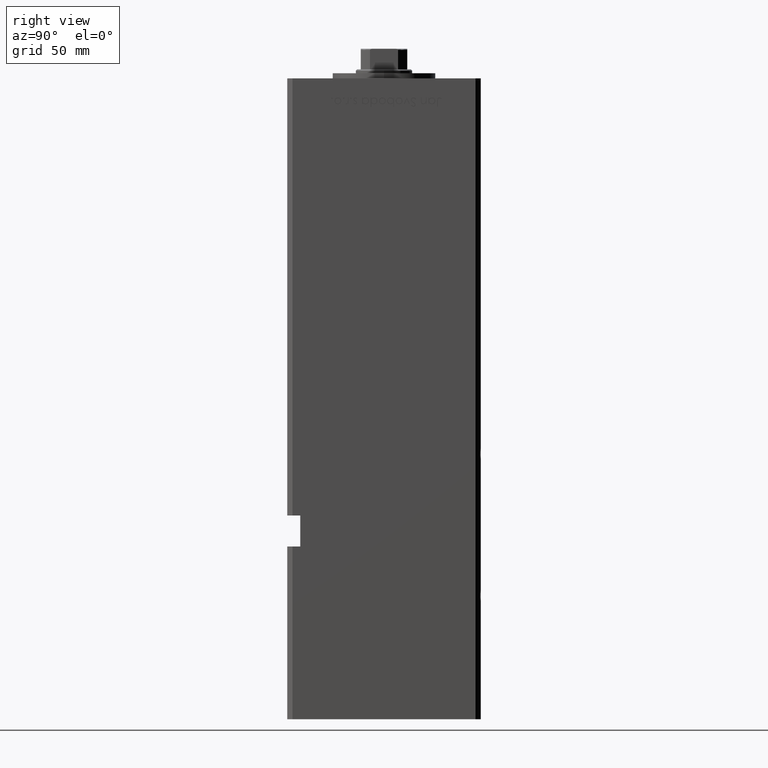
[diagram: clean part render]
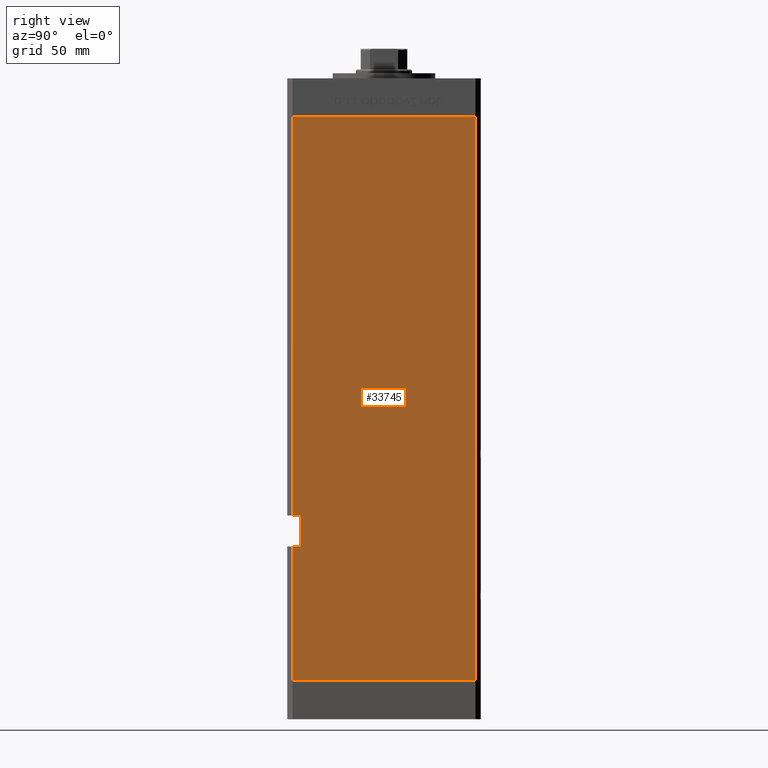
[diagram: same view with one face highlighted and labeled with its STEP entity id]
A machine part, right view. The second image highlights one B-rep face of the part: STEP entity #33745.
In plain terms, the highlighted planar face has unit normal (1, -0, 0).
Its self-contained STEP definition (entity closure, byte-faithful):
#937 = LINE ( 'NONE', #33445, #21138 ) ;
#1130 = LINE ( 'NONE', #50849, #46909 ) ;
#1891 = PLANE ( 'NONE',  #23562 ) ;
#2010 = VERTEX_POINT ( 'NONE', #52369 ) ;
#2672 = VERTEX_POINT ( 'NONE', #24986 ) ;
#4115 = VERTEX_POINT ( 'NONE', #24476 ) ;
#4658 = CARTESIAN_POINT ( 'NONE',  ( 42.49999999999999289, -32.50000000000000711, 64.00000000000002842 ) ) ;
#4983 = CARTESIAN_POINT ( 'NONE',  ( 42.49999999999998579, -35.50000000000000711, 218.5000000000000000 ) ) ;
#5397 = DIRECTION ( 'NONE',  ( 1.000000000000000000, -3.909236002201255146E-16, 0.000000000000000000 ) ) ;
#6852 = DIRECTION ( 'NONE',  ( -3.909236002201255146E-16, -1.000000000000000000, 0.000000000000000000 ) ) ;
#9012 = LINE ( 'NONE', #4983, #13856 ) ;
#9158 = CARTESIAN_POINT ( 'NONE',  ( 42.50000000000001421, 35.50000000000000711, 218.5000000000000000 ) ) ;
#9682 = DIRECTION ( 'NONE',  ( 3.909236002201255146E-16, 1.000000000000000000, 0.000000000000000000 ) ) ;
#9845 = ORIENTED_EDGE ( 'NONE', *, *, #17686, .T. ) ;
#10062 = EDGE_CURVE ( 'NONE', #52933, #4115, #28759, .T. ) ;
#10231 = ORIENTED_EDGE ( 'NONE', *, *, #14007, .T. ) ;
#10926 = ORIENTED_EDGE ( 'NONE', *, *, #29357, .T. ) ;
#12766 = DIRECTION ( 'NONE',  ( -3.909236002201255146E-16, -1.000000000000000000, 0.000000000000000000 ) ) ;
#13082 = VECTOR ( 'NONE', #13589, 1000.000000000000000 ) ;
#13300 = DIRECTION ( 'NONE',  ( -0.000000000000000000, -0.000000000000000000, -1.000000000000000000 ) ) ;
#13567 = VERTEX_POINT ( 'NONE', #29863 ) ;
#13589 = DIRECTION ( 'NONE',  ( -0.000000000000000000, -1.000000000000000000, -0.000000000000000000 ) ) ;
#13856 = VECTOR ( 'NONE', #13300, 1000.000000000000000 ) ;
#14007 = EDGE_CURVE ( 'NONE', #52651, #13567, #9012, .T. ) ;
#16120 = CARTESIAN_POINT ( 'NONE',  ( 42.49999999999999289, -32.50000000000000711, 64.00000000000002842 ) ) ;
#17686 = EDGE_CURVE ( 'NONE', #52933, #28980, #34006, .T. ) ;
#18527 = CARTESIAN_POINT ( 'NONE',  ( 42.49999999999999289, -35.50000000000000711, 52.00000000000002132 ) ) ;
#20835 = CARTESIAN_POINT ( 'NONE',  ( 42.49999999999998579, -35.50000000000000711, 218.5000000000000000 ) ) ;
#21138 = VECTOR ( 'NONE', #12766, 1000.000000000000000 ) ;
#21637 = CARTESIAN_POINT ( 'NONE',  ( 42.49999999999999289, -32.50000000000000711, 52.00000000000002132 ) ) ;
#22357 = ORIENTED_EDGE ( 'NONE', *, *, #43696, .F. ) ;
#23070 = LINE ( 'NONE', #20835, #38895 ) ;
#23482 = CARTESIAN_POINT ( 'NONE',  ( 42.50000000000001421, 35.50000000000000711, 218.5000000000000000 ) ) ;
#23562 = AXIS2_PLACEMENT_3D ( 'NONE', #33862, #5397, #9682 ) ;
#24476 = CARTESIAN_POINT ( 'NONE',  ( 42.49999999999999289, -32.50000000000000711, 64.00000000000002842 ) ) ;
#24986 = CARTESIAN_POINT ( 'NONE',  ( 42.50000000000001421, 35.50000000000000711, 0.000000000000000000 ) ) ;
#26307 = EDGE_CURVE ( 'NONE', #4115, #13567, #37161, .T. ) ;
#26363 = DIRECTION ( 'NONE',  ( -0.000000000000000000, -0.000000000000000000, -1.000000000000000000 ) ) ;
#26827 = VECTOR ( 'NONE', #6852, 1000.000000000000000 ) ;
#27570 = ORIENTED_EDGE ( 'NONE', *, *, #10062, .F. ) ;
#28290 = DIRECTION ( 'NONE',  ( -0.000000000000000000, -1.000000000000000000, -0.000000000000000000 ) ) ;
#28759 = LINE ( 'NONE', #16120, #50660 ) ;
#28980 = VERTEX_POINT ( 'NONE', #18527 ) ;
#29357 = EDGE_CURVE ( 'NONE', #33754, #52651, #43661, .T. ) ;
#29863 = CARTESIAN_POINT ( 'NONE',  ( 42.49999999999999289, -35.50000000000000711, 64.00000000000002842 ) ) ;
#31000 = ORIENTED_EDGE ( 'NONE', *, *, #43290, .F. ) ;
#31091 = EDGE_CURVE ( 'NONE', #28980, #2010, #23070, .T. ) ;
#32765 = VECTOR ( 'NONE', #28290, 1000.000000000000000 ) ;
#33127 = ORIENTED_EDGE ( 'NONE', *, *, #26307, .F. ) ;
#33445 = CARTESIAN_POINT ( 'NONE',  ( 42.50000000000001421, 35.50000000000000711, 0.000000000000000000 ) ) ;
#33745 = ADVANCED_FACE ( 'NONE', ( #46777 ), #1891, .T. ) ;
#33754 = VERTEX_POINT ( 'NONE', #9158 ) ;
#33862 = CARTESIAN_POINT ( 'NONE',  ( 42.50000000000001421, 35.50000000000000711, 218.5000000000000000 ) ) ;
#34006 = LINE ( 'NONE', #21637, #13082 ) ;
#35215 = EDGE_LOOP ( 'NONE', ( #9845, #44881, #31000, #22357, #10926, #10231, #33127, #27570 ) ) ;
#35447 = DIRECTION ( 'NONE',  ( -0.000000000000000000, -0.000000000000000000, -1.000000000000000000 ) ) ;
#37161 = LINE ( 'NONE', #4658, #32765 ) ;
#38895 = VECTOR ( 'NONE', #35447, 1000.000000000000000 ) ;
#43290 = EDGE_CURVE ( 'NONE', #2672, #2010, #937, .T. ) ;
#43661 = LINE ( 'NONE', #23482, #26827 ) ;
#43696 = EDGE_CURVE ( 'NONE', #33754, #2672, #1130, .T. ) ;
#44881 = ORIENTED_EDGE ( 'NONE', *, *, #31091, .T. ) ;
#46777 = FACE_OUTER_BOUND ( 'NONE', #35215, .T. ) ;
#46909 = VECTOR ( 'NONE', #26363, 1000.000000000000000 ) ;
#47853 = CARTESIAN_POINT ( 'NONE',  ( 42.49999999999998579, -35.50000000000000711, 218.5000000000000000 ) ) ;
#48323 = CARTESIAN_POINT ( 'NONE',  ( 42.49999999999998579, -32.50000000000000000, 52.00000000000002132 ) ) ;
#50660 = VECTOR ( 'NONE', #52969, 1000.000000000000000 ) ;
#50849 = CARTESIAN_POINT ( 'NONE',  ( 42.50000000000001421, 35.50000000000000711, 218.5000000000000000 ) ) ;
#52369 = CARTESIAN_POINT ( 'NONE',  ( 42.49999999999998579, -35.50000000000000711, 0.000000000000000000 ) ) ;
#52651 = VERTEX_POINT ( 'NONE', #47853 ) ;
#52933 = VERTEX_POINT ( 'NONE', #48323 ) ;
#52969 = DIRECTION ( 'NONE',  ( -0.000000000000000000, -0.000000000000000000, 1.000000000000000000 ) ) ;